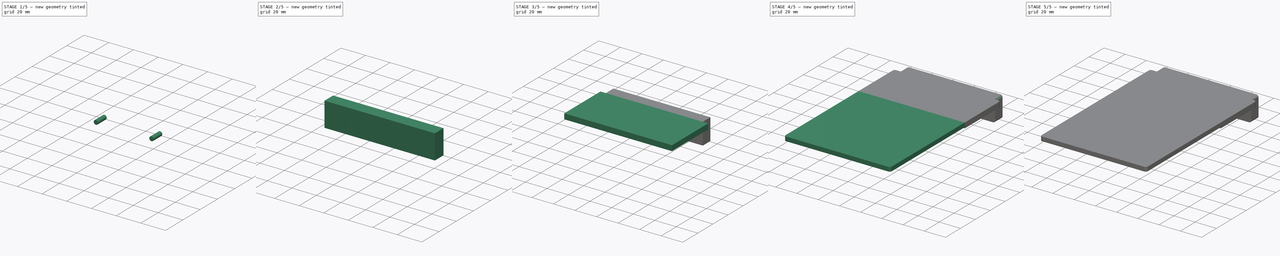
[diagram: build sequence overview — one tinted view per stage of 5, left to right]
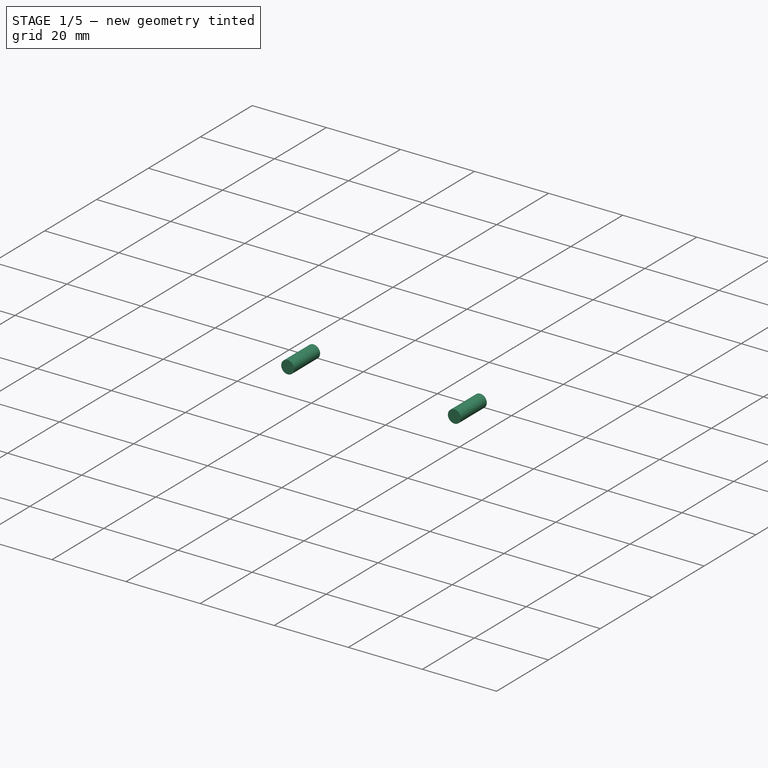
[diagram: stage 1 of 5 — iso view after this stage's code; geometry added in this stage tinted green]
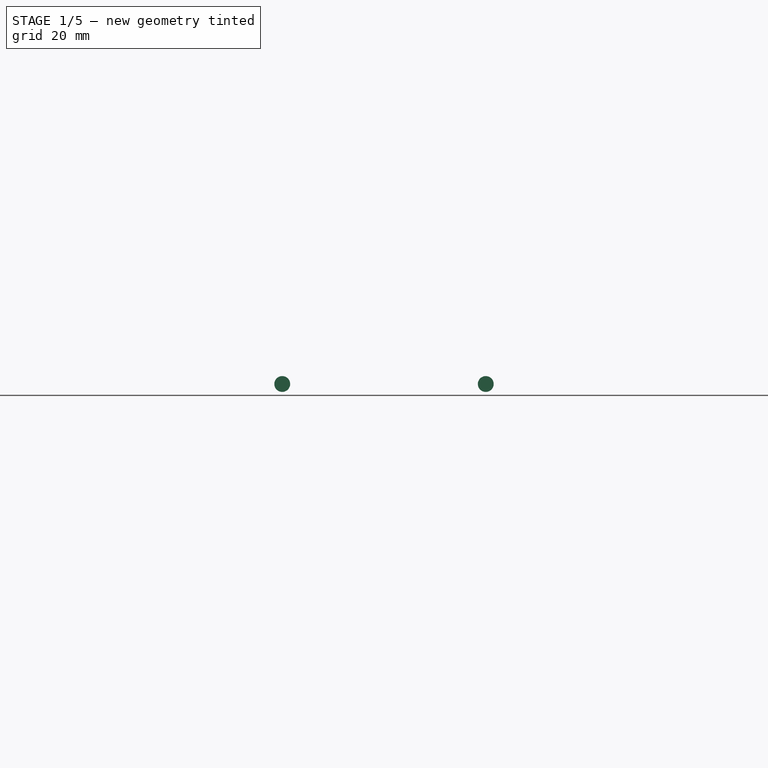
[diagram: stage 1 of 5 — front view after this stage's code; geometry added in this stage tinted green]
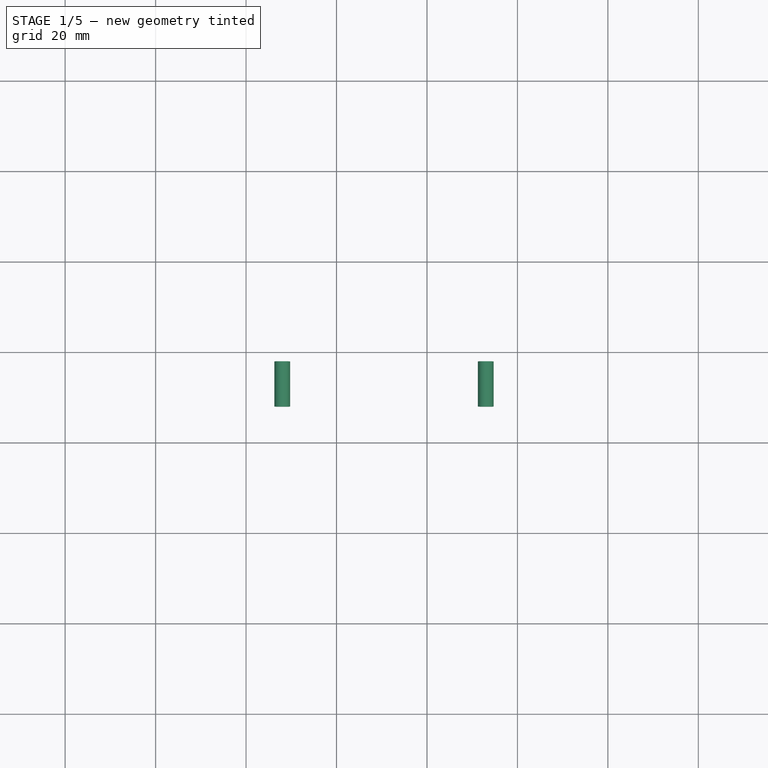
[diagram: stage 1 of 5 — top view after this stage's code; geometry added in this stage tinted green]
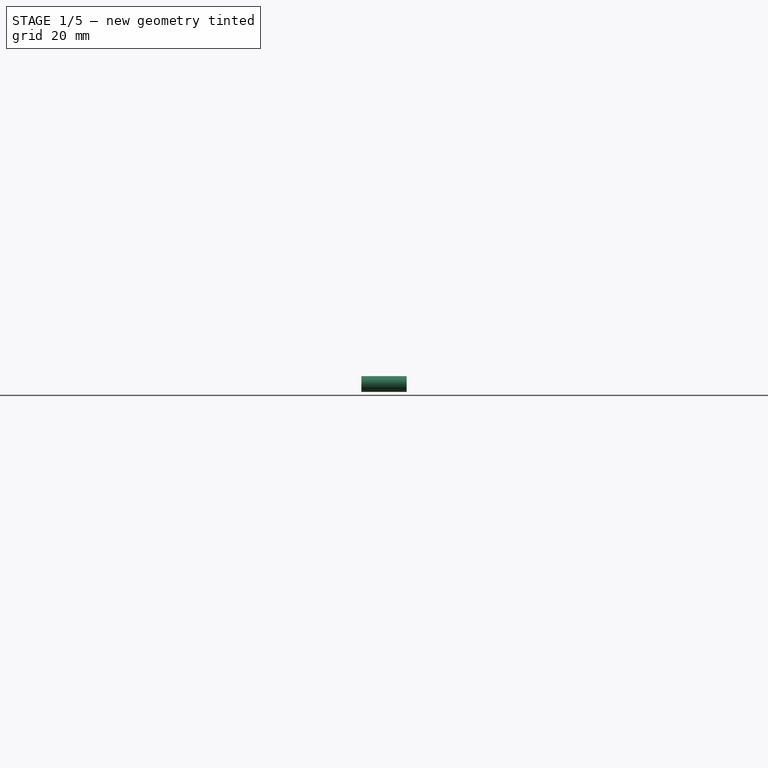
[diagram: stage 1 of 5 — right view after this stage's code; geometry added in this stage tinted green]
FCSTD DOCUMENT  (FreeCAD 0.15R4671 (Git))
Label: Hood_Camtraption
License: All rights reserved
LicenseURL: http://en.wikipedia.org/wiki/All_rights_reserved
objects: Part::Box×5, Part::Cylinder×4, Part::MultiFuse×3, Sketcher::SketchObject×2, PartDesign::Pad×2, Part::Cut×2, Part::Fillet×1
note: 21 computed .brp shape members not serialized (recipe doc carries the construction recipe); baked Part::Feature solids carry a one-line shape summary decoded from their .brp

FEATURE [Part::Cylinder] Cylinder  label="Screw1"
  Angle = 360
  Height = 10
  Placement = pos=(28,158,-7) rot=(1,0,0;1.5708rad)
  Radius = 1.75
FEATURE [Part::Cylinder] Cylinder001  label="Screw2"
  Angle = 360
  Height = 10
  Placement = pos=(73,158,-7) rot=(1,0,0;1.5708rad)
  Radius = 1.75
FEATURE [Part::MultiFuse] Fusion001
  Shapes = -> [Cylinder,Cylinder001]
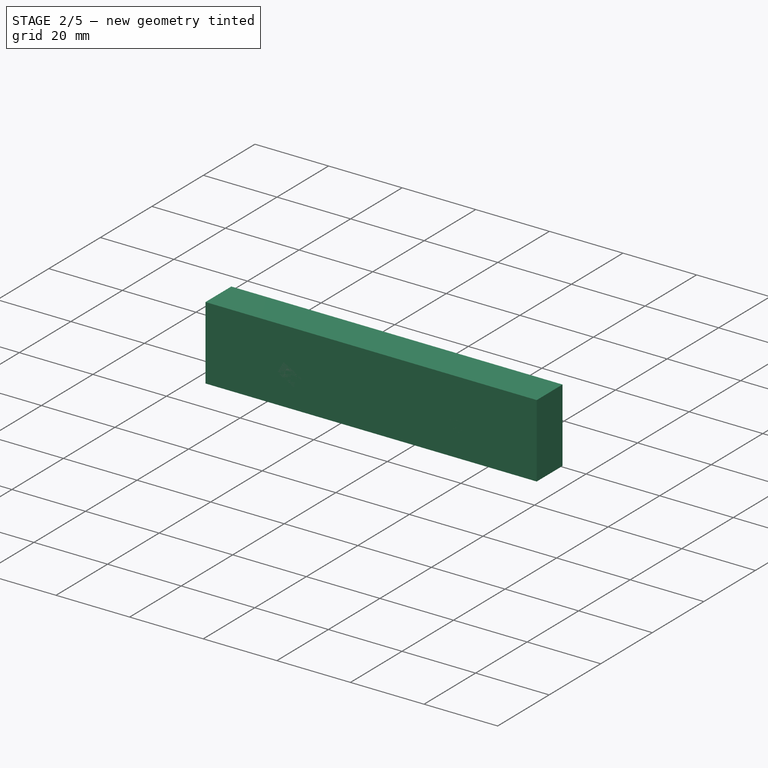
[diagram: stage 2 of 5 — iso view after this stage's code; geometry added in this stage tinted green]
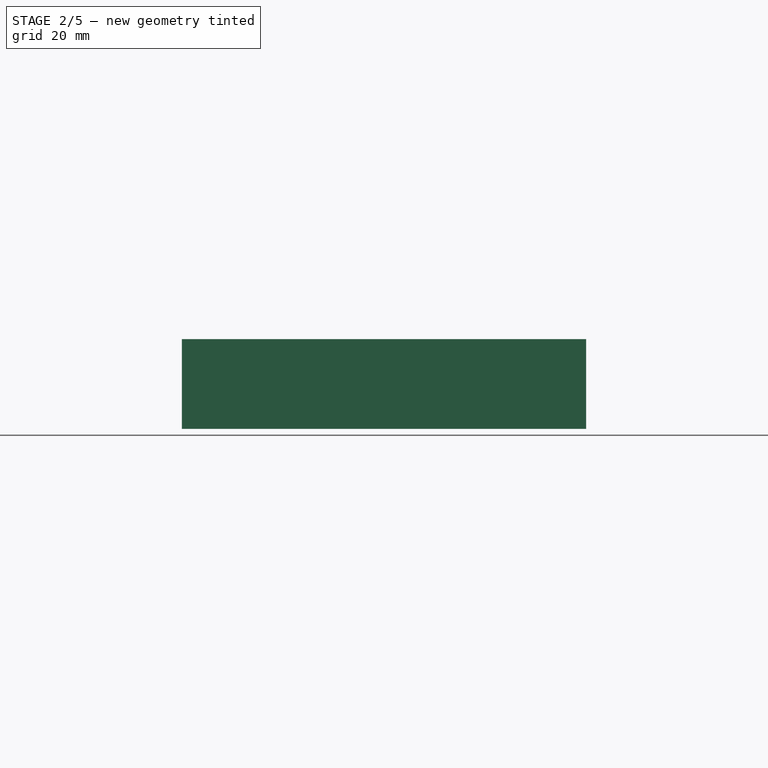
[diagram: stage 2 of 5 — front view after this stage's code; geometry added in this stage tinted green]
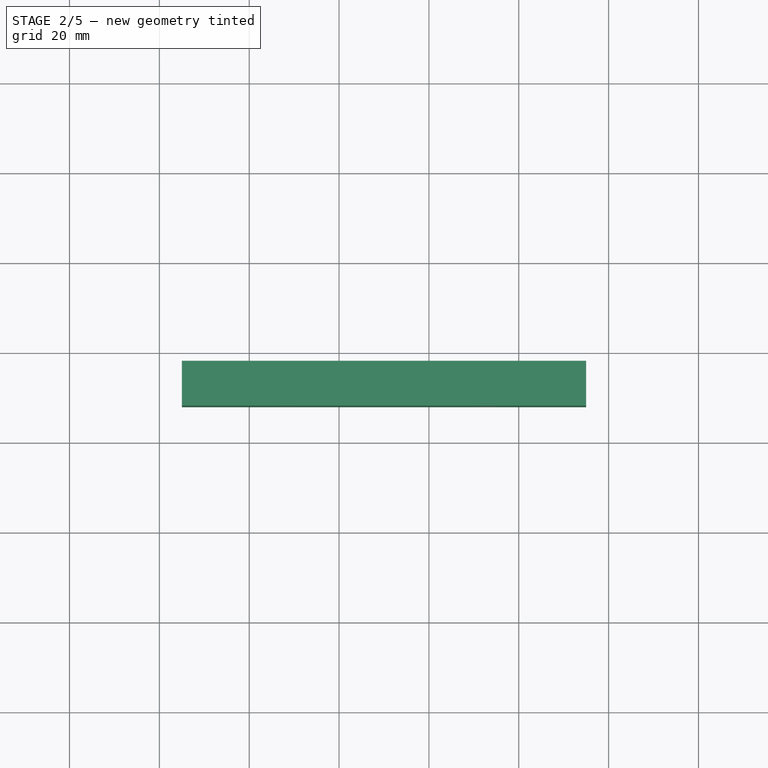
[diagram: stage 2 of 5 — top view after this stage's code; geometry added in this stage tinted green]
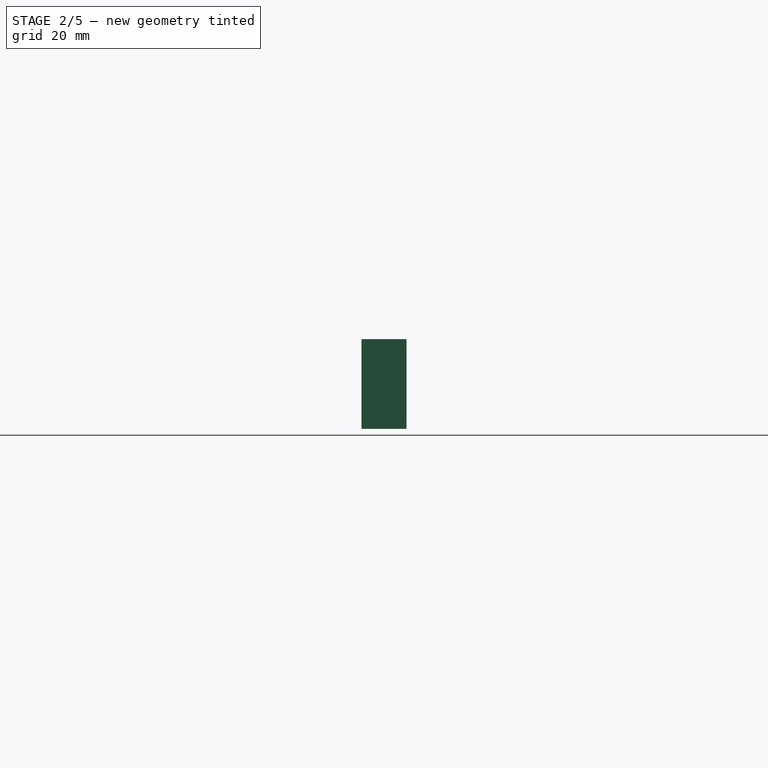
[diagram: stage 2 of 5 — right view after this stage's code; geometry added in this stage tinted green]
FEATURE [Part::Box] Box002  label="Hood_Back"
  Height = 20
  Length = 90
  Placement = pos=(5,148,-15) rot=(0,0,1;0rad)
  Width = 10
FEATURE [Sketcher::SketchObject] Sketch001
  Placement = pos=(50,148,-15) rot=(1,0,0;1.5708rad)
  sketch-geometry (6):
    g0: LineSegment StartX=24.7141 StartY=5 StartZ=0 EndX=26.4462 EndY=8 EndZ=0
    g1: LineSegment StartX=26.4462 StartY=8 StartZ=0 EndX=24.7141 EndY=11 EndZ=0
    g2: LineSegment StartX=24.7141 StartY=11 StartZ=0 EndX=21.25 EndY=11 EndZ=0
    g3: LineSegment StartX=21.25 StartY=11 StartZ=0 EndX=19.5179 EndY=8 EndZ=0
    g4: LineSegment StartX=19.5179 StartY=8 StartZ=0 EndX=21.25 EndY=5 EndZ=0
    g5: LineSegment StartX=21.25 StartY=5 StartZ=0 EndX=24.7141 EndY=5 EndZ=0
  constraints (23):
    c: Coincident(g0,g1)
    c: Coincident(g1,g2)
    c: Coincident(g2,g3)
    c: Coincident(g3,g4)
    c: Coincident(g4,g5)
    c: Coincident(g5,g0)
    c: DistanceX(g-1,g4) = 21.25
    c: DistanceY(g-1,g4) = 5
    c: Parallel(g-1,g5)
    c: Parallel(g5,g2)
    c: Equal(g0,g3)
    c: Equal(g3,g4)
    c: Equal(g4,g5)
    c: Equal(g5,g2)
    c: Equal(g2,g1)
    c: Equal(g5,g2)
    c: Equal(g2,g4)
    c: Equal(g4,g3)
    c: Equal(g3,g1)
    c: Equal(g1,g0)
    c: Distance(g4,g0) = 6
    c: Distance(g0,g3) = 6
    c: Distance(g4,g2) = 6
FEATURE [PartDesign::Pad] Pad001  label="Nut2"
  Length = 2.8
  Length2 = 100
  Placement = pos=(50,148,-15) rot=(1,0,0;1.5708rad)
  Reversed = true
  Sketch = -> Sketch001
  Type = 0
FEATURE [Sketcher::SketchObject] Sketch
  Placement = pos=(5,148,-15) rot=(1,0,0;1.5708rad)
  sketch-geometry (6):
    g0: LineSegment StartX=24.7141 StartY=5 StartZ=0 EndX=26.4462 EndY=8 EndZ=0
    g1: LineSegment StartX=26.4462 StartY=8 StartZ=0 EndX=24.7141 EndY=11 EndZ=0
    g2: LineSegment StartX=24.7141 StartY=11 StartZ=0 EndX=21.25 EndY=11 EndZ=0
    g3: LineSegment StartX=21.25 StartY=11 StartZ=0 EndX=19.5179 EndY=8 EndZ=0
    g4: LineSegment StartX=19.5179 StartY=8 StartZ=0 EndX=21.25 EndY=5 EndZ=0
    g5: LineSegment StartX=21.25 StartY=5 StartZ=0 EndX=24.7141 EndY=5 EndZ=0
  constraints (24):
    c: Coincident(g0,g1)
    c: Coincident(g1,g2)
    c: Coincident(g2,g3)
    c: Coincident(g3,g4)
    c: Coincident(g4,g5)
    c: Coincident(g5,g0)
    c: DistanceX(g-1,g4) = 21.25
    c: DistanceY(g-1,g4) = 5
    c: Parallel(g-1,g5)
    c: Parallel(g5,g2)
    c: Equal(g0,g3)
    c: Equal(g3,g4)
    c: Equal(g4,g5)
    c: Equal(g5,g2)
    c: Equal(g2,g1)
    c: Equal(g5,g2)
    c: Equal(g2,g4)
    c: Equal(g4,g3)
    c: Equal(g3,g1)
    c: Equal(g1,g0)
    c: Distance(g4,g0) = 6
    c: Distance(g0,g3) = 6
    c: Distance(g3,g1) = 6
    c: Distance(g2,g4) = 6
FEATURE [PartDesign::Pad] Pad  label="Nut1"
  Length = 2.8
  Length2 = 100
  Placement = pos=(5,148,-15) rot=(1,0,0;1.5708rad)
  Reversed = true
  Sketch = -> Sketch
  Type = 0
FEATURE [Part::MultiFuse] Fusion
  Shapes = -> [Pad,Pad001]
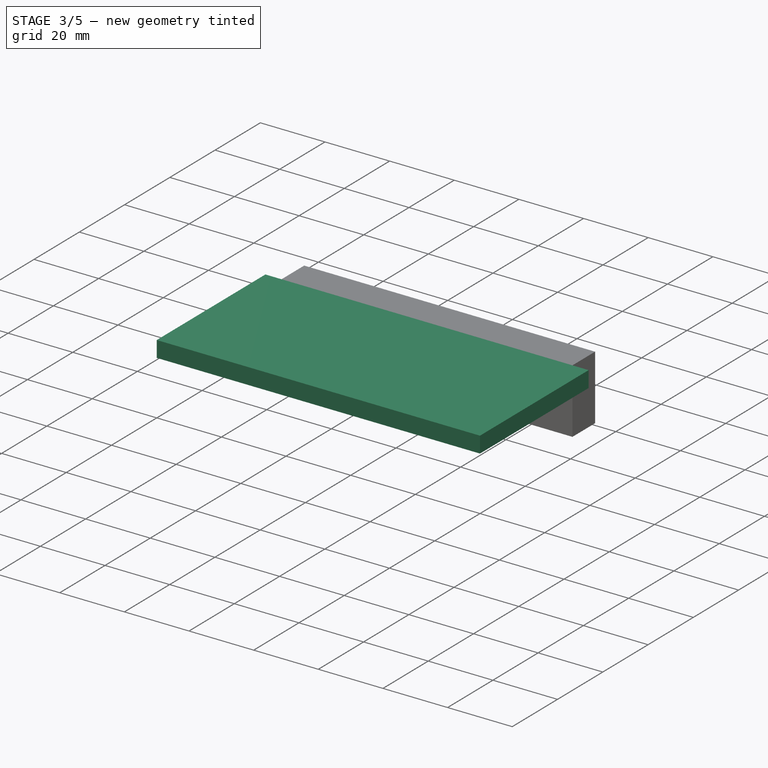
[diagram: stage 3 of 5 — iso view after this stage's code; geometry added in this stage tinted green]
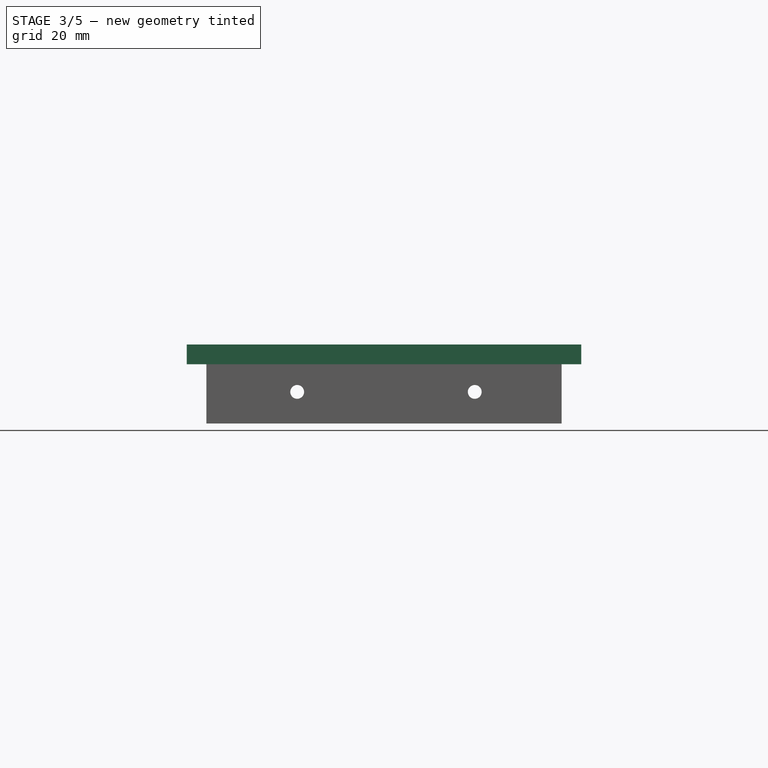
[diagram: stage 3 of 5 — front view after this stage's code; geometry added in this stage tinted green]
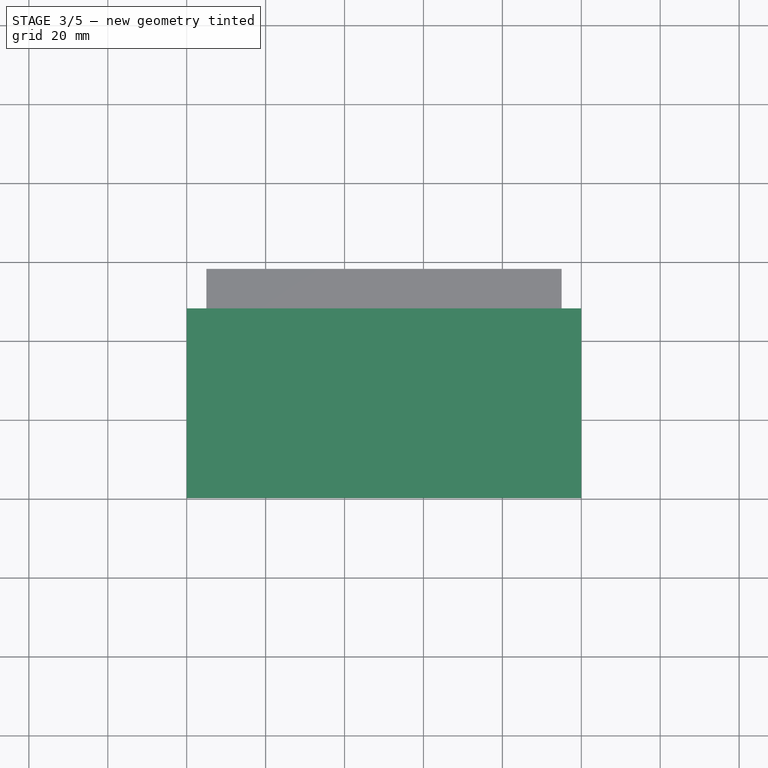
[diagram: stage 3 of 5 — top view after this stage's code; geometry added in this stage tinted green]
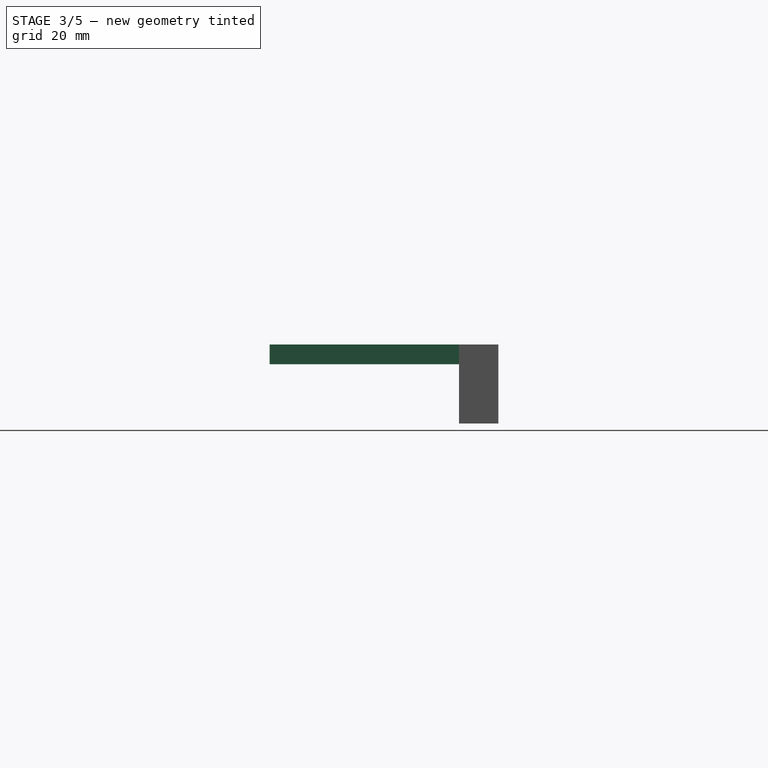
[diagram: stage 3 of 5 — right view after this stage's code; geometry added in this stage tinted green]
FEATURE [Part::Box] Box001  label="Hood2"
  Height = 5
  Length = 100
  Placement = pos=(0,100,0) rot=(0,0,1;0rad)
  Width = 48
FEATURE [Part::Cut] Cut
  Base = -> Box002
  Tool = -> Fusion
FEATURE [Part::Cut] Cut001
  Base = -> Cut
  Tool = -> Fusion001
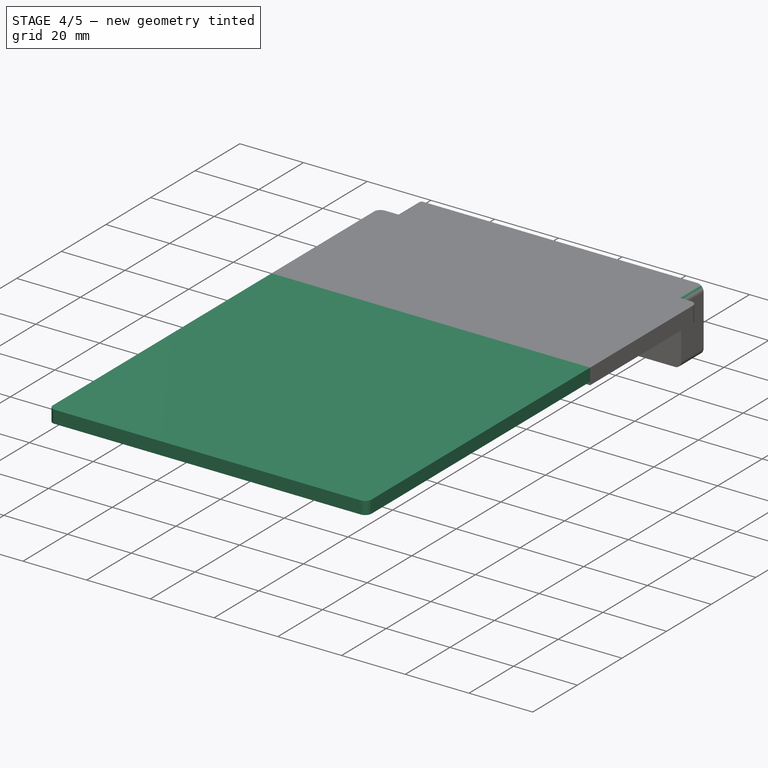
[diagram: stage 4 of 5 — iso view after this stage's code; geometry added in this stage tinted green]
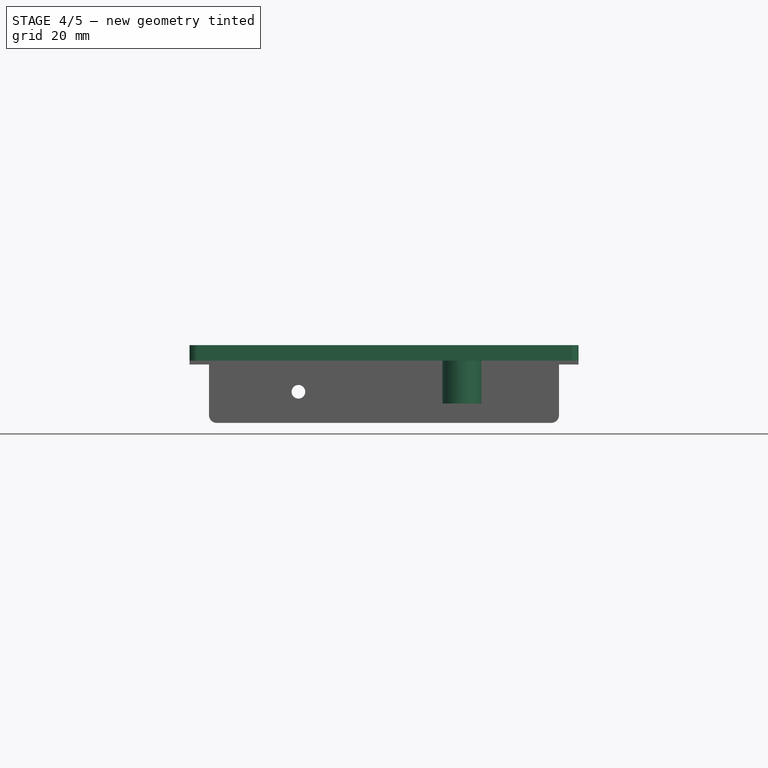
[diagram: stage 4 of 5 — front view after this stage's code; geometry added in this stage tinted green]
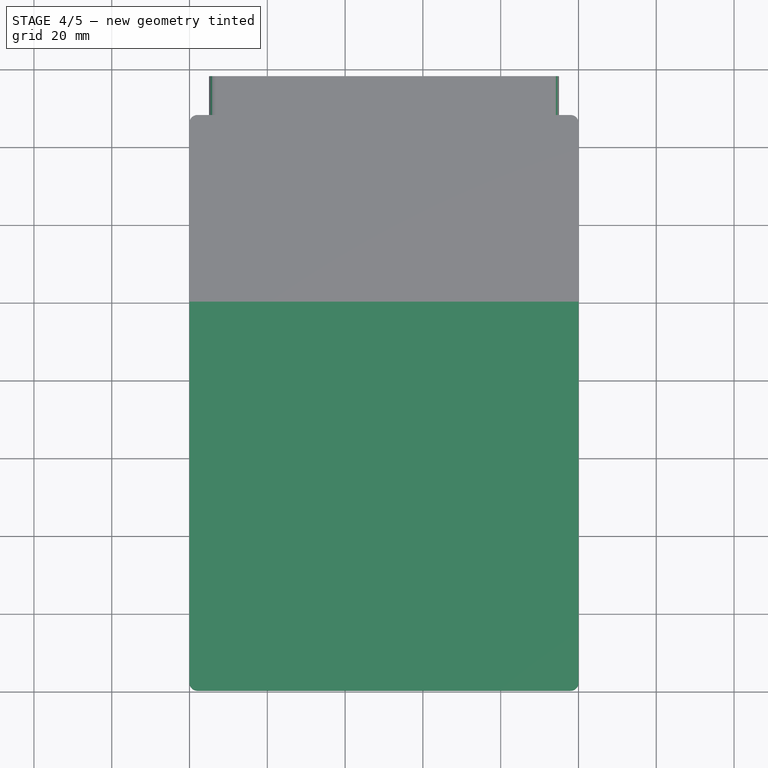
[diagram: stage 4 of 5 — top view after this stage's code; geometry added in this stage tinted green]
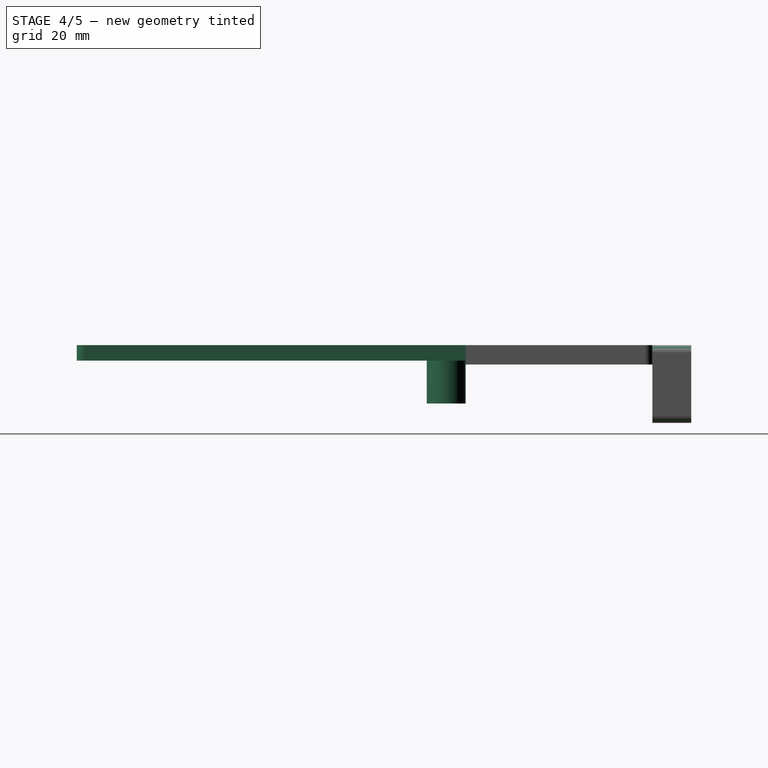
[diagram: stage 4 of 5 — right view after this stage's code; geometry added in this stage tinted green]
FEATURE [Part::Box] Box  label="Hood1"
  Height = 4
  Length = 100
  Placement = pos=(0,0,1) rot=(0,0,1;0rad)
  Width = 100
FEATURE [Part::Cylinder] Cylinder003  label="Hood_Front4"
  Angle = 360
  Height = 11
  Placement = pos=(70,95,-10) rot=(0,0,1;0rad)
  Radius = 5
FEATURE [Part::MultiFuse] Fusion002
  Shapes = -> [Box,Box001,Cut001]
FEATURE [Part::Fillet] Fillet
  Base = -> Fusion002
  Edges = 8 edges r=2: [Edge2,Edge4,Edge17,Edge24,Edge30,Edge32,Edge48,Edge50]
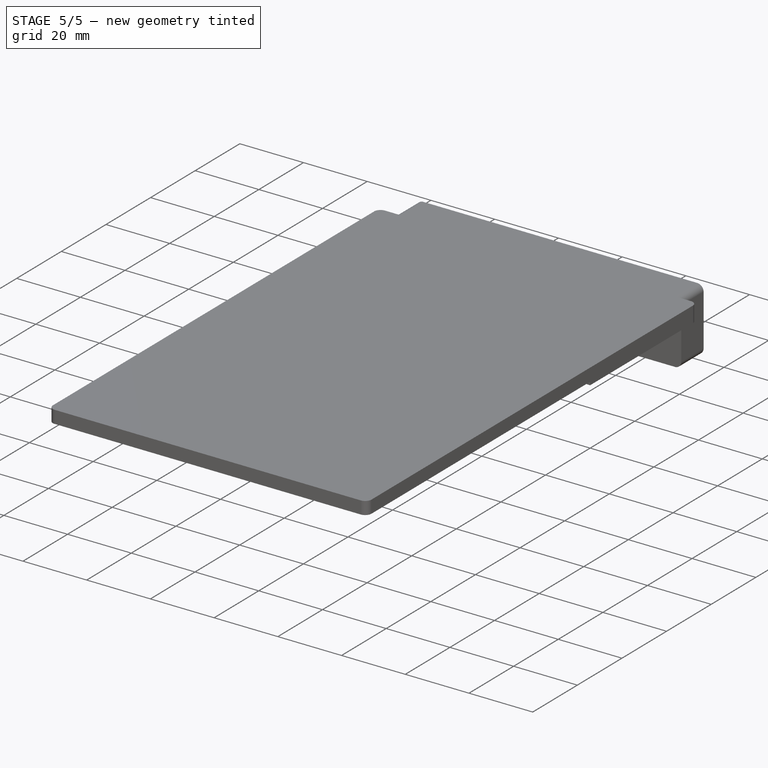
[diagram: stage 5 of 5 — iso view after this stage's code; geometry added in this stage tinted green]
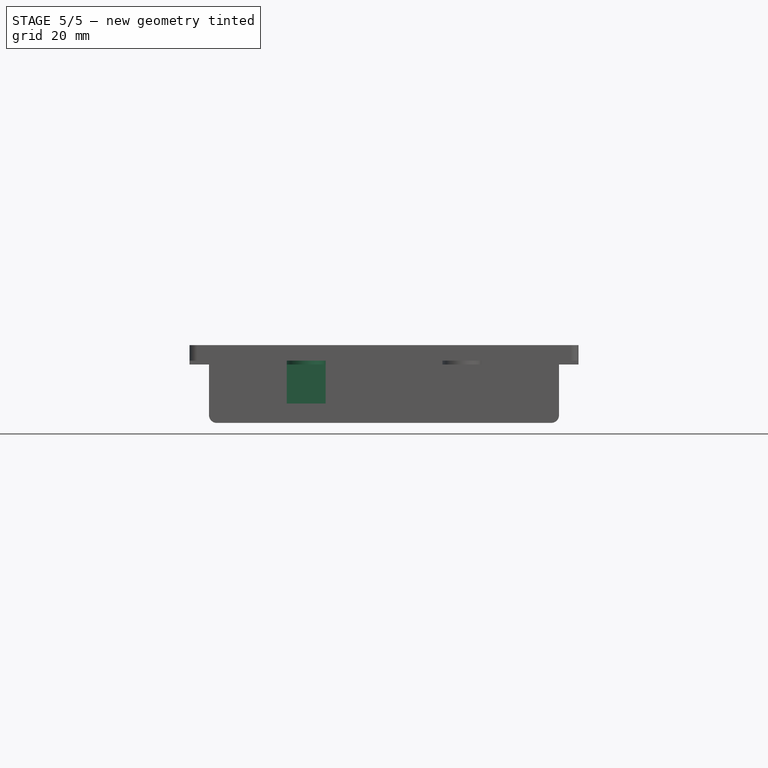
[diagram: stage 5 of 5 — front view after this stage's code; geometry added in this stage tinted green]
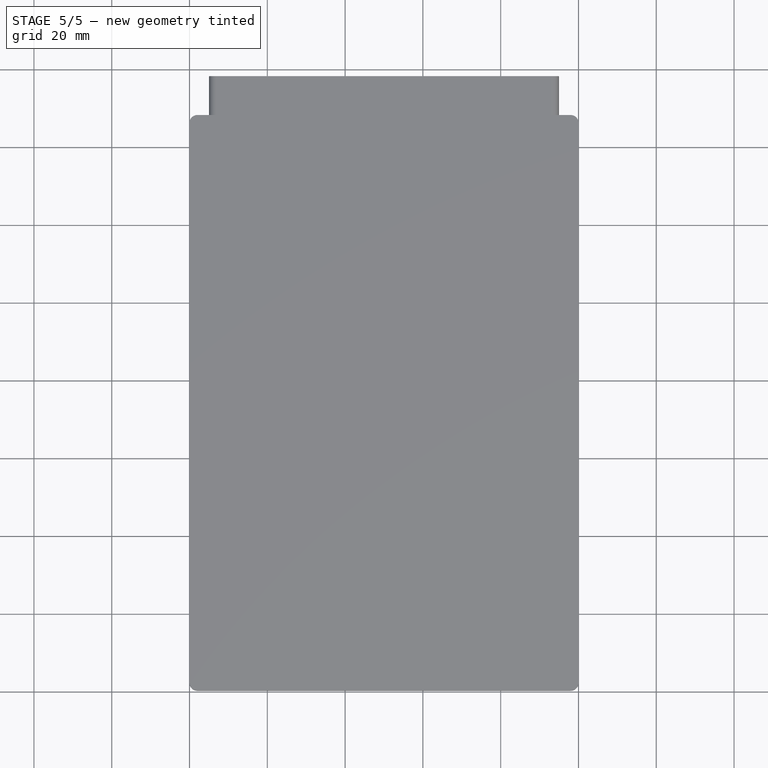
[diagram: stage 5 of 5 — top view after this stage's code; geometry added in this stage tinted green]
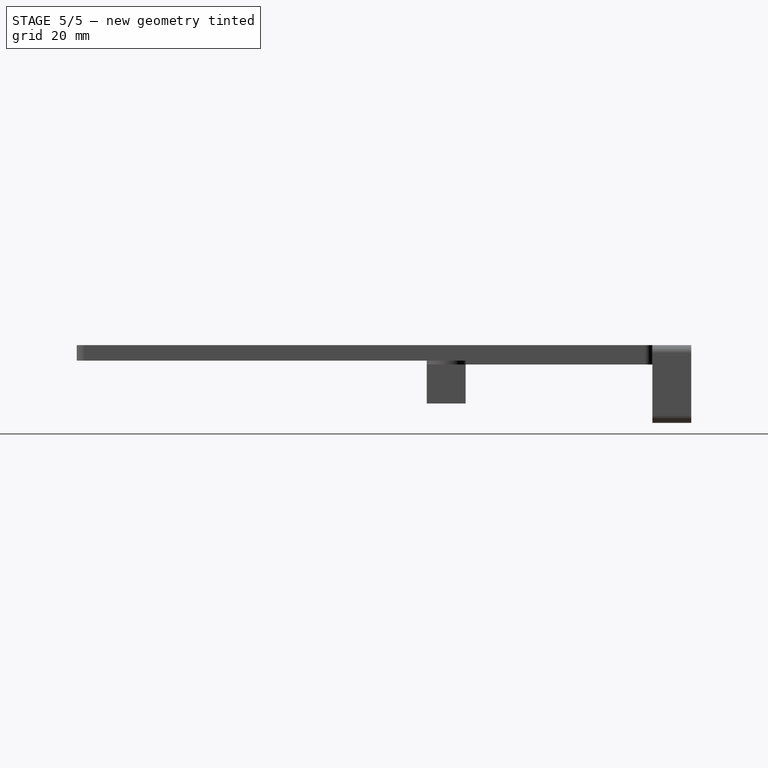
[diagram: stage 5 of 5 — right view after this stage's code; geometry added in this stage tinted green]
FEATURE [Part::Box] Box003  label="Hood_Front1"
  Height = 10
  Length = 10
  Placement = pos=(25,90,-10) rot=(0,0,1;0rad)
  Width = 10
FEATURE [Part::Box] Box004  label="Hood_Front2"
  Height = 10
  Length = 10
  Placement = pos=(65,90,-10) rot=(0,0,1;0rad)
  Width = 10
FEATURE [Part::Cylinder] Cylinder002  label="Hood_Front3"
  Angle = 360
  Height = 11
  Placement = pos=(30,95,-10) rot=(0,0,1;0rad)
  Radius = 5
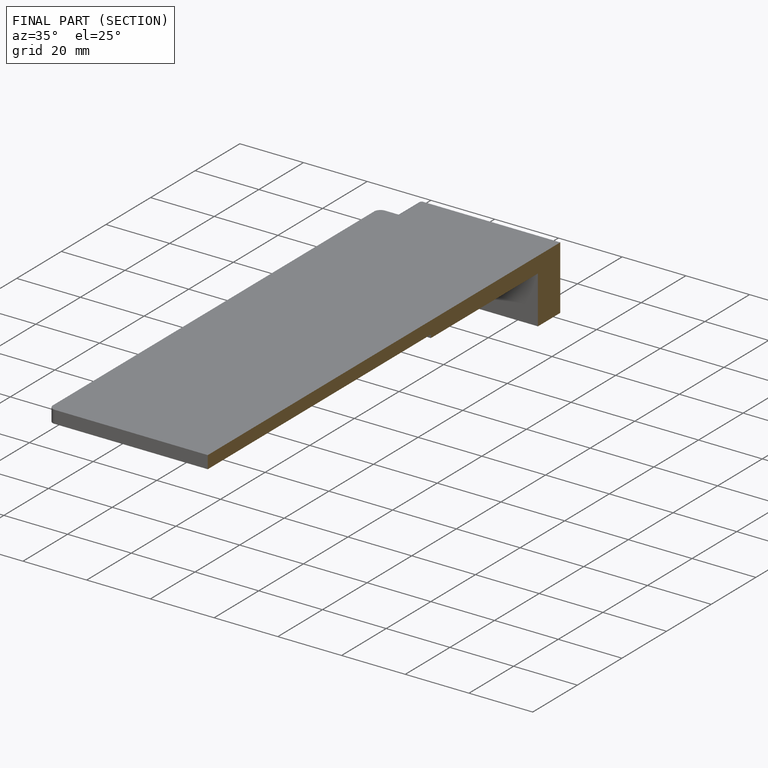
[diagram: finished part — half-section view (interior)]
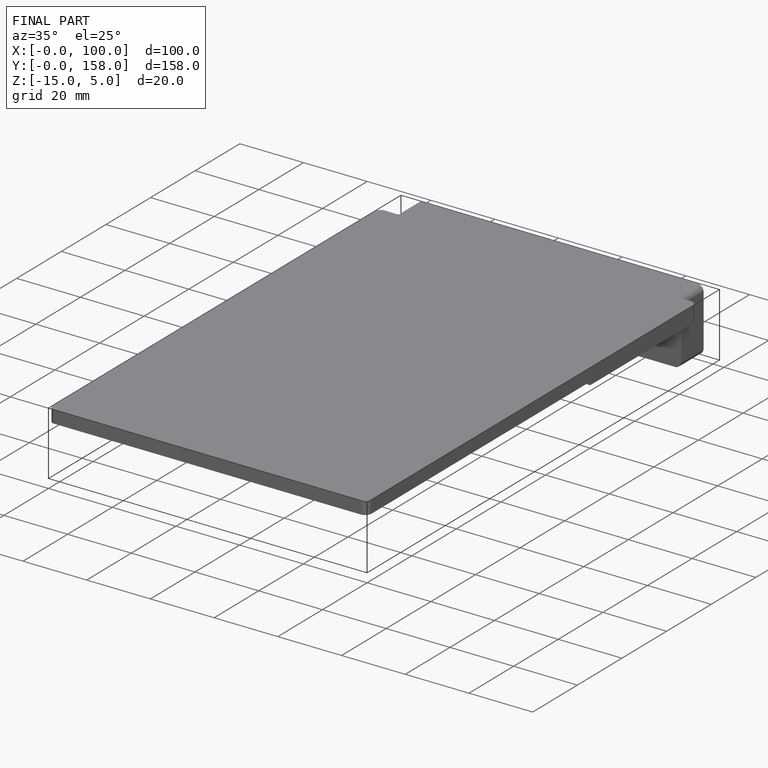
[diagram: finished part — iso view with bounding-box wireframe]
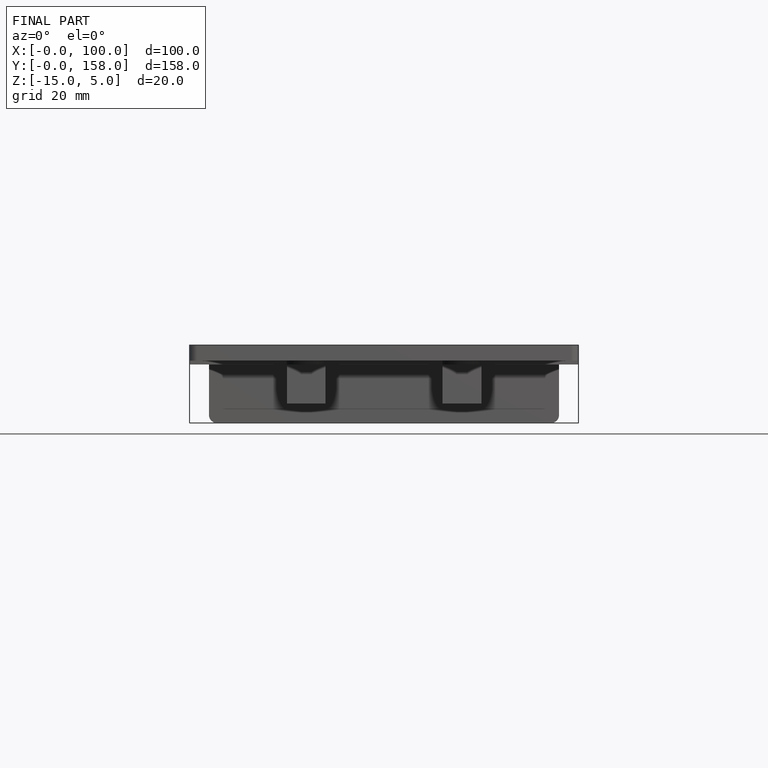
[diagram: finished part — front view with bounding-box wireframe]
